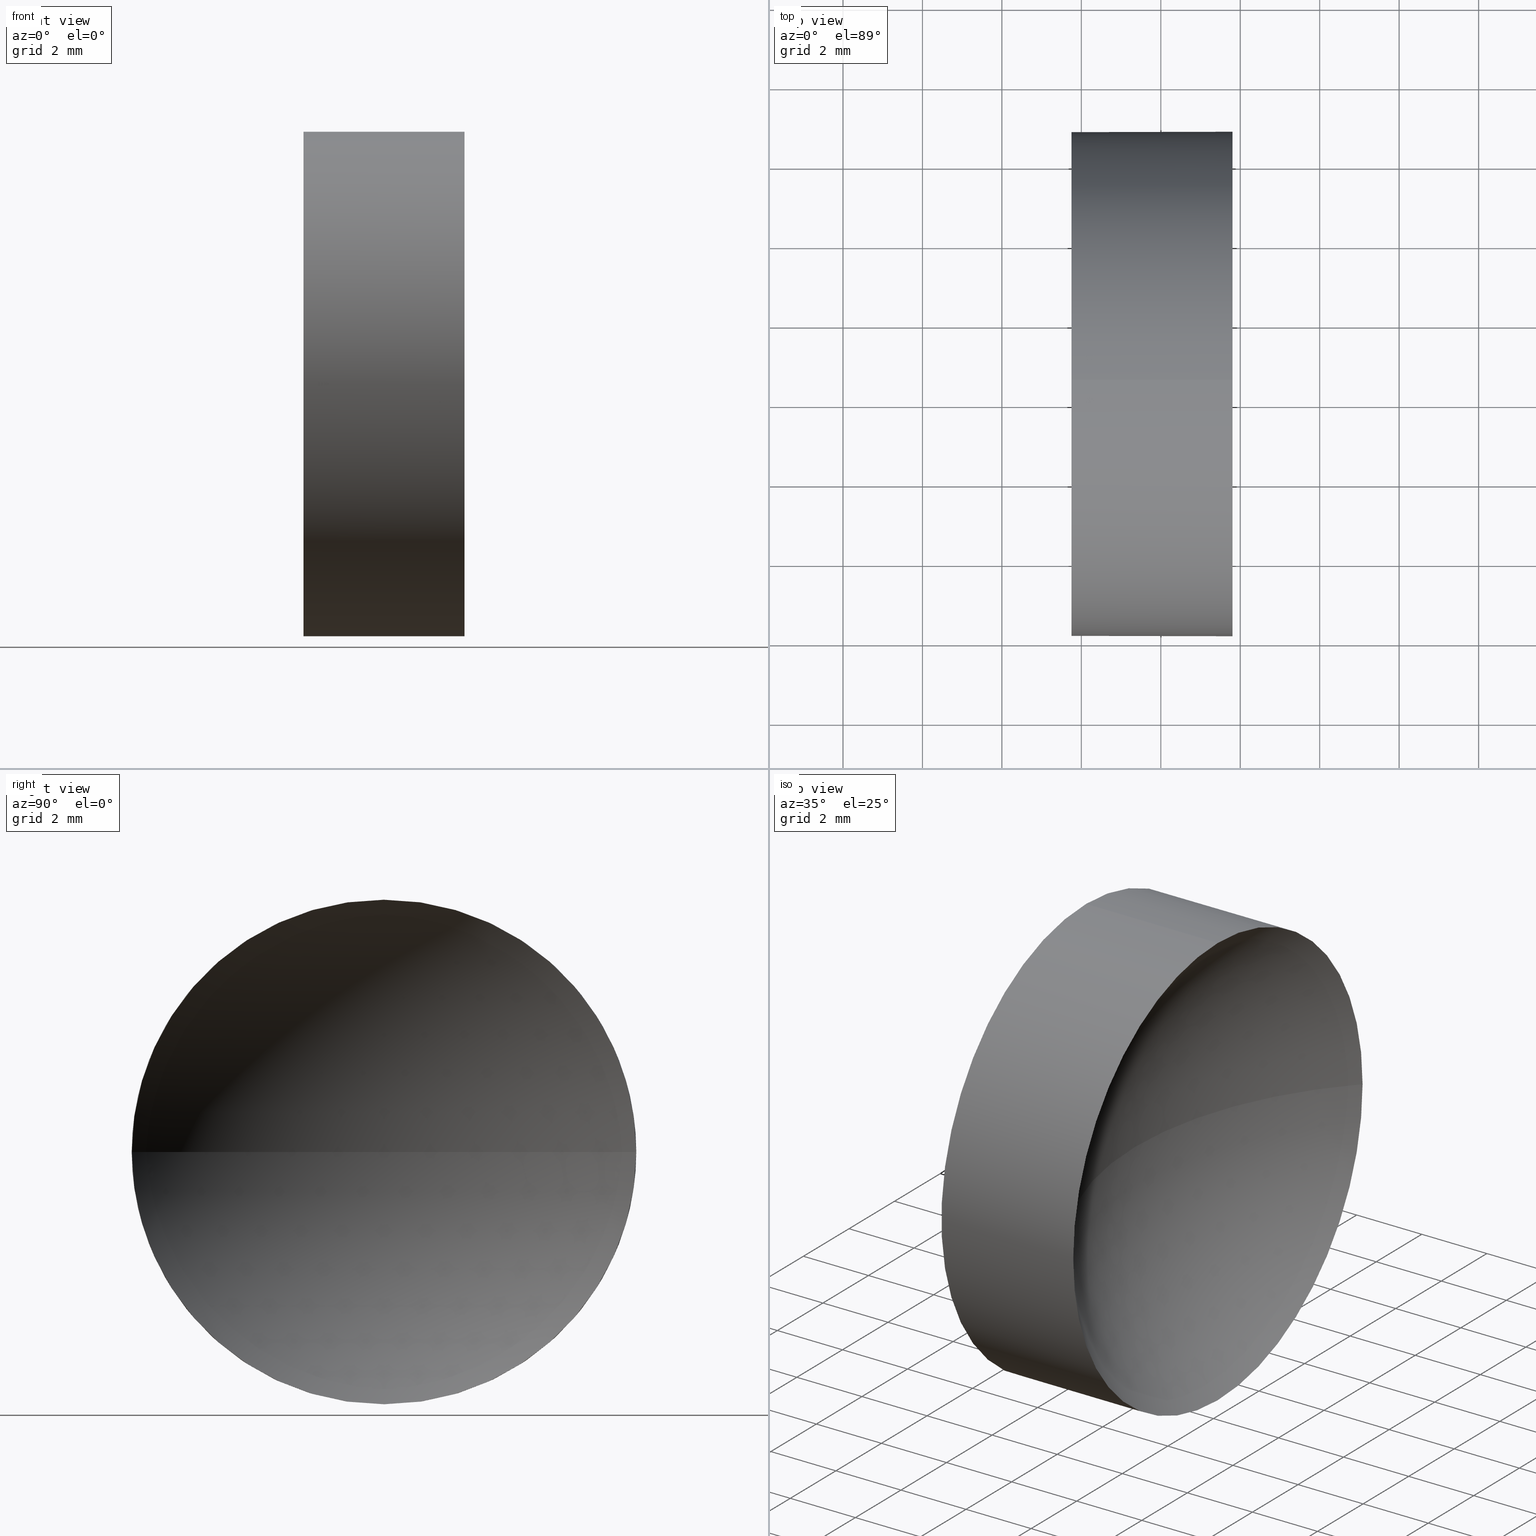
[diagram: canonical four-view strip — front | top / right | iso, engineering-drawing reading convention]
A machine part, canonical four-view strip (front | top / right | iso — engineering-drawing reading convention). The complete STEP part file that produces these views, byte-faithful:
ISO-10303-21;
HEADER;
FILE_DESCRIPTION (( 'STEP AP214' ),
    '1' );
FILE_NAME ('120257.STEP',
    '2019-06-25T02:08:13',
    ( '' ),
    ( '' ),
    'SwSTEP 2.0',
    'SolidWorks 2016',
    '' );
FILE_SCHEMA (( 'AUTOMOTIVE_DESIGN' ));
ENDSEC;

DATA;
#1 = ORIENTED_EDGE ( 'NONE', *, *, #40, .T. ) ;
#2 = EDGE_CURVE ( 'NONE', #51, #155, #116, .T. ) ;
#3 = CARTESIAN_POINT ( 'NONE',  ( 44.78209190302423800, 28.47759563463748100, 0.0000000000000000000 ) ) ;
#4 = DIRECTION ( 'NONE',  ( 0.0000000000000000000, 0.0000000000000000000, -1.000000000000000000 ) ) ;
#5 = FACE_OUTER_BOUND ( 'NONE', #62, .T. ) ;
#6 = ORIENTED_EDGE ( 'NONE', *, *, #30, .F. ) ;
#7 = ORIENTED_EDGE ( 'NONE', *, *, #75, .F. ) ;
#8 = AXIS2_PLACEMENT_3D ( 'NONE', #61, #160, #58 ) ;
#9 = FACE_OUTER_BOUND ( 'NONE', #162, .T. ) ;
#10 =( NAMED_UNIT ( * ) SI_UNIT ( $, .STERADIAN. ) SOLID_ANGLE_UNIT ( ) );
#11 = ADVANCED_FACE ( 'NONE', ( #66 ), #79, .T. ) ;
#12 = SURFACE_STYLE_FILL_AREA ( #112 ) ;
#13 = DIRECTION ( 'NONE',  ( -1.000000000000000000, -0.0000000000000000000, -0.0000000000000000000 ) ) ;
#14 = PRESENTATION_STYLE_ASSIGNMENT (( #167 ) ) ;
#15 = LINE ( 'NONE', #70, #120 ) ;
#16 = CARTESIAN_POINT ( 'NONE',  ( 44.78209190302423800, 28.47759563463748100, 0.0000000000000000000 ) ) ;
#17 = CARTESIAN_POINT ( 'NONE',  ( 0.0000000000000000000, 0.0000000000000000000, 0.0000000000000000000 ) ) ;
#18 = ORIENTED_EDGE ( 'NONE', *, *, #50, .F. ) ;
#19 = PRODUCT_DEFINITION ( 'δ֪', '', #63, #108 ) ;
#20 = ORIENTED_EDGE ( 'NONE', *, *, #37, .T. ) ;
#21 = EDGE_CURVE ( 'NONE', #47, #180, #83, .T. ) ;
#22 = EDGE_LOOP ( 'NONE', ( #20, #36, #6, #18, #76 ) ) ;
#23 =( NAMED_UNIT ( * ) PLANE_ANGLE_UNIT ( ) SI_UNIT ( $, .RADIAN. ) );
#24 = CIRCLE ( 'NONE', #56, 6.350000000000001400 ) ;
#25 = ADVANCED_FACE ( 'NONE', ( #5 ), #107, .F. ) ;
#26 = EDGE_CURVE ( 'NONE', #180, #148, #139, .T. ) ;
#27 = CARTESIAN_POINT ( 'NONE',  ( 51.80370850148246800, 28.47759563463748100, 0.0000000000000000000 ) ) ;
#28 =( GEOMETRIC_REPRESENTATION_CONTEXT ( 3 ) GLOBAL_UNCERTAINTY_ASSIGNED_CONTEXT ( ( #86 ) ) GLOBAL_UNIT_ASSIGNED_CONTEXT ( ( #136, #137, #151 ) ) REPRESENTATION_CONTEXT ( 'NONE', 'WORKASPACE' ) );
#29 = CARTESIAN_POINT ( 'NONE',  ( 47.75370850148247100, 28.47759563463748100, 0.0000000000000000000 ) ) ;
#30 = EDGE_CURVE ( 'NONE', #134, #163, #90, .T. ) ;
#31 = DIRECTION ( 'NONE',  ( 0.0000000000000000000, 0.0000000000000000000, 1.000000000000000000 ) ) ;
#32 = EDGE_LOOP ( 'NONE', ( #41, #52, #105, #165, #177 ) ) ;
#33 = DIRECTION ( 'NONE',  ( 0.0000000000000000000, -1.000000000000000000, 0.0000000000000000000 ) ) ;
#34 = CARTESIAN_POINT ( 'NONE',  ( 47.75370850148247100, 28.47759563463748100, -6.350000000000001400 ) ) ;
#35 = SURFACE_STYLE_FILL_AREA ( #166 ) ;
#36 = ORIENTED_EDGE ( 'NONE', *, *, #59, .T. ) ;
#37 = EDGE_CURVE ( 'NONE', #51, #47, #174, .T. ) ;
#38 = AXIS2_PLACEMENT_3D ( 'NONE', #97, #13, #109 ) ;
#39 = FACE_OUTER_BOUND ( 'NONE', #32, .T. ) ;
#40 = EDGE_CURVE ( 'NONE', #163, #134, #24, .T. ) ;
#41 = ORIENTED_EDGE ( 'NONE', *, *, #59, .F. ) ;
#42 = DIRECTION ( 'NONE',  ( -1.000000000000000000, -0.0000000000000000000, -0.0000000000000000000 ) ) ;
#43 = DIRECTION ( 'NONE',  ( 0.0000000000000000000, -1.224646799147353200E-016, 1.000000000000000000 ) ) ;
#44 = SURFACE_STYLE_USAGE ( .BOTH. , #130 ) ;
#45 = CARTESIAN_POINT ( 'NONE',  ( 58.43508105050207700, 28.47759563463748100, 0.0000000000000000000 ) ) ;
#46 = CARTESIAN_POINT ( 'NONE',  ( 58.43508105050207700, 28.47759563463748100, 0.0000000000000000000 ) ) ;
#47 = VERTEX_POINT ( 'NONE', #127 ) ;
#48 = AXIS2_PLACEMENT_3D ( 'NONE', #168, #80, #183 ) ;
#49 = LINE ( 'NONE', #100, #157 ) ;
#50 = EDGE_CURVE ( 'NONE', #148, #134, #15, .T. ) ;
#51 = VERTEX_POINT ( 'NONE', #68 ) ;
#52 = ORIENTED_EDGE ( 'NONE', *, *, #21, .T. ) ;
#53 = PRODUCT_CONTEXT ( 'NONE', #92, 'mechanical' ) ;
#54 = ORIENTED_EDGE ( 'NONE', *, *, #37, .F. ) ;
#55 = CARTESIAN_POINT ( 'NONE',  ( 47.75370850148247100, 28.47759563463748100, 0.0000000000000000000 ) ) ;
#56 = AXIS2_PLACEMENT_3D ( 'NONE', #82, #57, #98 ) ;
#57 = DIRECTION ( 'NONE',  ( -1.000000000000000000, -0.0000000000000000000, -0.0000000000000000000 ) ) ;
#58 = DIRECTION ( 'NONE',  ( 0.0000000000000000000, -1.000000000000000000, 0.0000000000000000000 ) ) ;
#59 = EDGE_CURVE ( 'NONE', #47, #163, #49, .T. ) ;
#60 =( NAMED_UNIT ( * ) PLANE_ANGLE_UNIT ( ) SI_UNIT ( $, .RADIAN. ) );
#61 = CARTESIAN_POINT ( 'NONE',  ( 58.43508105050207700, 28.47759563463748100, 0.0000000000000000000 ) ) ;
#62 = EDGE_LOOP ( 'NONE', ( #114, #1 ) ) ;
#63 = PRODUCT_DEFINITION_FORMATION_WITH_SPECIFIED_SOURCE ( '�κ�', '', #152, .NOT_KNOWN. ) ;
#64 = ADVANCED_FACE ( 'NONE', ( #9 ), #93, .F. ) ;
#65 = DIRECTION ( 'NONE',  ( 1.000000000000000000, 0.0000000000000000000, 0.0000000000000000000 ) ) ;
#66 = FACE_OUTER_BOUND ( 'NONE', #22, .T. ) ;
#67 = ADVANCED_FACE ( 'NONE', ( #95 ), #111, .F. ) ;
#68 = CARTESIAN_POINT ( 'NONE',  ( 51.80370850148246800, 34.82759563463748300, 7.776507174585696100E-016 ) ) ;
#69 = DIRECTION ( 'NONE',  ( 0.0000000000000000000, -1.000000000000000000, -1.224646799147353200E-016 ) ) ;
#70 = CARTESIAN_POINT ( 'NONE',  ( 44.78209190302423800, 28.47759563463748100, 6.350000000000001400 ) ) ;
#71 = CLOSED_SHELL ( 'NONE', ( #11, #67, #64, #150, #25 ) ) ;
#72 =( NAMED_UNIT ( * ) SI_UNIT ( $, .STERADIAN. ) SOLID_ANGLE_UNIT ( ) );
#73 = CARTESIAN_POINT ( 'NONE',  ( 47.75370850148247100, 28.47759563463748100, 6.350000000000001400 ) ) ;
#74 = PRODUCT_RELATED_PRODUCT_CATEGORY ( 'part', '', ( #152 ) ) ;
#75 = EDGE_CURVE ( 'NONE', #180, #155, #153, .T. ) ;
#76 = ORIENTED_EDGE ( 'NONE', *, *, #123, .T. ) ;
#77 = AXIS2_PLACEMENT_3D ( 'NONE', #16, #140, #81 ) ;
#78 = CIRCLE ( 'NONE', #110, 6.350000000000001400 ) ;
#79 = CYLINDRICAL_SURFACE ( 'NONE', #77, 6.350000000000001400 ) ;
#80 = DIRECTION ( 'NONE',  ( -1.000000000000000000, -0.0000000000000000000, -0.0000000000000000000 ) ) ;
#81 = DIRECTION ( 'NONE',  ( 0.0000000000000000000, 0.0000000000000000000, 1.000000000000000000 ) ) ;
#82 = CARTESIAN_POINT ( 'NONE',  ( 47.75370850148247100, 28.47759563463748100, 0.0000000000000000000 ) ) ;
#83 = CIRCLE ( 'NONE', #106, 6.350000000000001400 ) ;
#84 = DIRECTION ( 'NONE',  ( 0.0000000000000000000, 0.0000000000000000000, 1.000000000000000000 ) ) ;
#85 = DIRECTION ( 'NONE',  ( 0.0000000000000000000, 0.0000000000000000000, 1.000000000000000000 ) ) ;
#86 = UNCERTAINTY_MEASURE_WITH_UNIT (LENGTH_MEASURE( 1.000000000000000100E-005 ), #136, 'distance_accuracy_value', 'NONE');
#87 = ORIENTED_EDGE ( 'NONE', *, *, #2, .F. ) ;
#88 =( GEOMETRIC_REPRESENTATION_CONTEXT ( 3 ) GLOBAL_UNCERTAINTY_ASSIGNED_CONTEXT ( ( #118 ) ) GLOBAL_UNIT_ASSIGNED_CONTEXT ( ( #144, #60, #72 ) ) REPRESENTATION_CONTEXT ( 'NONE', 'WORKASPACE' ) );
#89 = UNCERTAINTY_MEASURE_WITH_UNIT (LENGTH_MEASURE( 1.000000000000000100E-005 ), #94, 'distance_accuracy_value', 'NONE');
#90 = CIRCLE ( 'NONE', #96, 6.350000000000001400 ) ;
#91 = COLOUR_RGB ( '',1.000000000000000000, 1.000000000000000000, 1.000000000000000000 ) ;
#92 = APPLICATION_CONTEXT ( 'automotive_design' ) ;
#93 = SPHERICAL_SURFACE ( 'NONE', #179, 9.181372549019608100 ) ;
#94 =( LENGTH_UNIT ( ) NAMED_UNIT ( * ) SI_UNIT ( .MILLI., .METRE. ) );
#95 = FACE_OUTER_BOUND ( 'NONE', #132, .T. ) ;
#96 = AXIS2_PLACEMENT_3D ( 'NONE', #29, #170, #186 ) ;
#97 = CARTESIAN_POINT ( 'NONE',  ( 51.80370850148246800, 28.47759563463748100, 0.0000000000000000000 ) ) ;
#98 = DIRECTION ( 'NONE',  ( 0.0000000000000000000, 0.0000000000000000000, 1.000000000000000000 ) ) ;
#99 = DIRECTION ( 'NONE',  ( 1.000000000000000000, 0.0000000000000000000, 0.0000000000000000000 ) ) ;
#100 = CARTESIAN_POINT ( 'NONE',  ( 44.78209190302423800, 28.47759563463748100, -6.350000000000001400 ) ) ;
#101 = CARTESIAN_POINT ( 'NONE',  ( 49.25370850148246400, 28.47759563463748100, 0.0000000000000000000 ) ) ;
#102 = ORIENTED_EDGE ( 'NONE', *, *, #2, .T. ) ;
#103 = FILL_AREA_STYLE_COLOUR ( '', #135 ) ;
#104 = AXIS2_PLACEMENT_3D ( 'NONE', #55, #99, #125 ) ;
#105 = ORIENTED_EDGE ( 'NONE', *, *, #26, .T. ) ;
#106 = AXIS2_PLACEMENT_3D ( 'NONE', #27, #156, #142 ) ;
#107 = PLANE ( 'NONE',  #104 ) ;
#108 = PRODUCT_DEFINITION_CONTEXT ( 'detailed design', #138, 'design' ) ;
#109 = DIRECTION ( 'NONE',  ( 0.0000000000000000000, 0.0000000000000000000, 1.000000000000000000 ) ) ;
#110 = AXIS2_PLACEMENT_3D ( 'NONE', #158, #146, #31 ) ;
#111 = SPHERICAL_SURFACE ( 'NONE', #8, 9.181372549019608100 ) ;
#112 = FILL_AREA_STYLE ('',( #147 ) ) ;
#113 = ADVANCED_BREP_SHAPE_REPRESENTATION ( '120257', ( #169, #164 ), #126 ) ;
#114 = ORIENTED_EDGE ( 'NONE', *, *, #30, .T. ) ;
#115 = AXIS2_PLACEMENT_3D ( 'NONE', #46, #4, #131 ) ;
#116 = CIRCLE ( 'NONE', #145, 9.181372549019608100 ) ;
#117 = CYLINDRICAL_SURFACE ( 'NONE', #171, 6.350000000000001400 ) ;
#118 = UNCERTAINTY_MEASURE_WITH_UNIT (LENGTH_MEASURE( 1.000000000000000100E-005 ), #144, 'distance_accuracy_value', 'NONE');
#119 = STYLED_ITEM ( 'NONE', ( #184 ), #169 ) ;
#120 = VECTOR ( 'NONE', #172, 1000.000000000000000 ) ;
#121 = DIRECTION ( 'NONE',  ( 0.0000000000000000000, 0.0000000000000000000, 1.000000000000000000 ) ) ;
#122 = APPLICATION_PROTOCOL_DEFINITION ( 'draft international standard', 'automotive_design', 1998, #138 ) ;
#123 = EDGE_CURVE ( 'NONE', #148, #51, #78, .T. ) ;
#124 = ORIENTED_EDGE ( 'NONE', *, *, #26, .F. ) ;
#125 = DIRECTION ( 'NONE',  ( 0.0000000000000000000, 0.0000000000000000000, -1.000000000000000000 ) ) ;
#126 =( GEOMETRIC_REPRESENTATION_CONTEXT ( 3 ) GLOBAL_UNCERTAINTY_ASSIGNED_CONTEXT ( ( #89 ) ) GLOBAL_UNIT_ASSIGNED_CONTEXT ( ( #94, #23, #10 ) ) REPRESENTATION_CONTEXT ( 'NONE', 'WORKASPACE' ) );
#127 = CARTESIAN_POINT ( 'NONE',  ( 51.80370850148246800, 28.47759563463748100, -6.350000000000001400 ) ) ;
#128 = SHAPE_DEFINITION_REPRESENTATION ( #178, #113 ) ;
#129 = ORIENTED_EDGE ( 'NONE', *, *, #21, .F. ) ;
#130 = SURFACE_SIDE_STYLE ('',( #12 ) ) ;
#131 = DIRECTION ( 'NONE',  ( -1.000000000000000000, 0.0000000000000000000, 0.0000000000000000000 ) ) ;
#132 = EDGE_LOOP ( 'NONE', ( #54, #102, #7, #129 ) ) ;
#133 = PRESENTATION_LAYER_ASSIGNMENT (  '', '', ( #119 ) ) ;
#134 = VERTEX_POINT ( 'NONE', #73 ) ;
#135 = COLOUR_RGB ( '',1.000000000000000000, 1.000000000000000000, 1.000000000000000000 ) ;
#136 =( LENGTH_UNIT ( ) NAMED_UNIT ( * ) SI_UNIT ( .MILLI., .METRE. ) );
#137 =( NAMED_UNIT ( * ) PLANE_ANGLE_UNIT ( ) SI_UNIT ( $, .RADIAN. ) );
#138 = APPLICATION_CONTEXT ( 'automotive_design' ) ;
#139 = CIRCLE ( 'NONE', #48, 6.350000000000001400 ) ;
#140 = DIRECTION ( 'NONE',  ( -1.000000000000000000, -0.0000000000000000000, -0.0000000000000000000 ) ) ;
#141 = MECHANICAL_DESIGN_GEOMETRIC_PRESENTATION_REPRESENTATION (  '', ( #161 ), #28 ) ;
#142 = DIRECTION ( 'NONE',  ( 0.0000000000000000000, 0.0000000000000000000, 1.000000000000000000 ) ) ;
#143 = ORIENTED_EDGE ( 'NONE', *, *, #75, .T. ) ;
#144 =( LENGTH_UNIT ( ) NAMED_UNIT ( * ) SI_UNIT ( .MILLI., .METRE. ) );
#145 = AXIS2_PLACEMENT_3D ( 'NONE', #182, #43, #69 ) ;
#146 = DIRECTION ( 'NONE',  ( -1.000000000000000000, -0.0000000000000000000, -0.0000000000000000000 ) ) ;
#147 = FILL_AREA_STYLE_COLOUR ( '', #91 ) ;
#148 = VERTEX_POINT ( 'NONE', #175 ) ;
#149 = ORIENTED_EDGE ( 'NONE', *, *, #123, .F. ) ;
#150 = ADVANCED_FACE ( 'NONE', ( #39 ), #117, .T. ) ;
#151 =( NAMED_UNIT ( * ) SI_UNIT ( $, .STERADIAN. ) SOLID_ANGLE_UNIT ( ) );
#152 = PRODUCT ( '120257', '120257', '', ( #53 ) ) ;
#153 = CIRCLE ( 'NONE', #115, 9.181372549019608100 ) ;
#154 = SURFACE_SIDE_STYLE ('',( #35 ) ) ;
#155 = VERTEX_POINT ( 'NONE', #101 ) ;
#156 = DIRECTION ( 'NONE',  ( -1.000000000000000000, -0.0000000000000000000, -0.0000000000000000000 ) ) ;
#157 = VECTOR ( 'NONE', #42, 1000.000000000000000 ) ;
#158 = CARTESIAN_POINT ( 'NONE',  ( 51.80370850148246800, 28.47759563463748100, 0.0000000000000000000 ) ) ;
#159 = DIRECTION ( 'NONE',  ( -1.000000000000000000, -0.0000000000000000000, -0.0000000000000000000 ) ) ;
#160 = DIRECTION ( 'NONE',  ( 0.0000000000000000000, 0.0000000000000000000, 1.000000000000000000 ) ) ;
#161 = STYLED_ITEM ( 'NONE', ( #14 ), #113 ) ;
#162 = EDGE_LOOP ( 'NONE', ( #87, #149, #124, #143 ) ) ;
#163 = VERTEX_POINT ( 'NONE', #34 ) ;
#164 = AXIS2_PLACEMENT_3D ( 'NONE', #17, #121, #65 ) ;
#165 = ORIENTED_EDGE ( 'NONE', *, *, #50, .T. ) ;
#166 = FILL_AREA_STYLE ('',( #103 ) ) ;
#167 = SURFACE_STYLE_USAGE ( .BOTH. , #154 ) ;
#168 = CARTESIAN_POINT ( 'NONE',  ( 51.80370850148246800, 28.47759563463748100, 0.0000000000000000000 ) ) ;
#169 = MANIFOLD_SOLID_BREP ( '��ת1', #71 ) ;
#170 = DIRECTION ( 'NONE',  ( -1.000000000000000000, -0.0000000000000000000, -0.0000000000000000000 ) ) ;
#171 = AXIS2_PLACEMENT_3D ( 'NONE', #3, #159, #85 ) ;
#172 = DIRECTION ( 'NONE',  ( -1.000000000000000000, -0.0000000000000000000, -0.0000000000000000000 ) ) ;
#173 = CARTESIAN_POINT ( 'NONE',  ( 51.80370850148246800, 22.12759563463748000, 0.0000000000000000000 ) ) ;
#174 = CIRCLE ( 'NONE', #38, 6.350000000000001400 ) ;
#175 = CARTESIAN_POINT ( 'NONE',  ( 51.80370850148246800, 28.47759563463748100, 6.350000000000001400 ) ) ;
#176 = PRESENTATION_LAYER_ASSIGNMENT (  '', '', ( #161 ) ) ;
#177 = ORIENTED_EDGE ( 'NONE', *, *, #40, .F. ) ;
#178 = PRODUCT_DEFINITION_SHAPE ( 'NONE', 'NONE',  #19 ) ;
#179 = AXIS2_PLACEMENT_3D ( 'NONE', #45, #84, #33 ) ;
#180 = VERTEX_POINT ( 'NONE', #173 ) ;
#181 = APPLICATION_PROTOCOL_DEFINITION ( 'draft international standard', 'automotive_design', 1998, #92 ) ;
#182 = CARTESIAN_POINT ( 'NONE',  ( 58.43508105050207700, 28.47759563463748100, 0.0000000000000000000 ) ) ;
#183 = DIRECTION ( 'NONE',  ( 0.0000000000000000000, 0.0000000000000000000, 1.000000000000000000 ) ) ;
#184 = PRESENTATION_STYLE_ASSIGNMENT (( #44 ) ) ;
#185 = MECHANICAL_DESIGN_GEOMETRIC_PRESENTATION_REPRESENTATION (  '', ( #119 ), #88 ) ;
#186 = DIRECTION ( 'NONE',  ( 0.0000000000000000000, 0.0000000000000000000, 1.000000000000000000 ) ) ;
ENDSEC;
END-ISO-10303-21;
